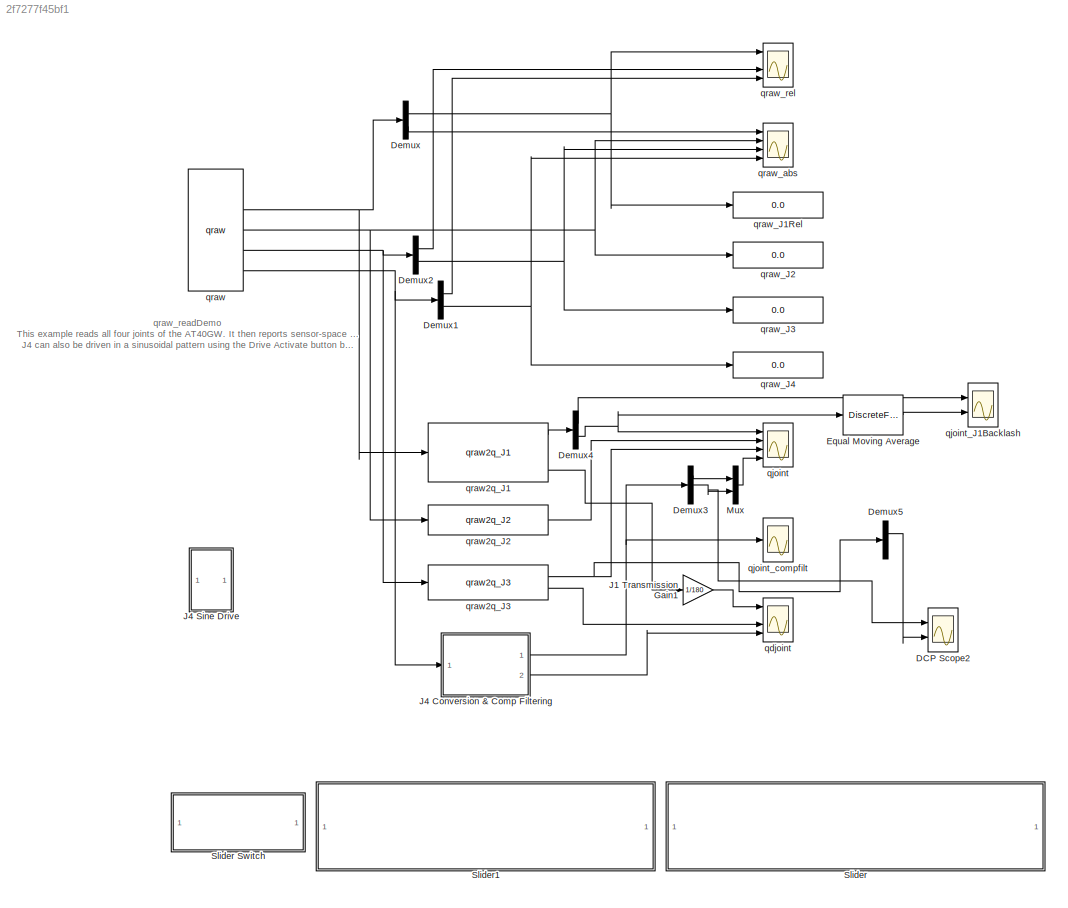
MODEL slx_2f7277f45bf1
KIND model
CONFIG AbsTol = auto
CONFIG EnableMultiTasking = on
CONFIG FixedStep = 0.001
CONFIG MaxStep = auto
CONFIG MinStep = auto
CONFIG RelTol = 1e-3
CONFIG SampleTimeConstraint = Unconstrained
CONFIG Solver = ode5
CONFIG SolverName = ode5
CONFIG StartTime = 0.0
CONFIG StopTime = inf
BLOCK [Scope] DCP Scope2
  NumInputPorts = 2
  Ports = [2]
  ScopeSpecificationString = Simulink.scopes.TimeScopeBlockCfg('CurrentConfiguration', extmgr.ConfigurationSet(extmgr.Configuration('Core','General UI',true,'FigureColor',[1 1 1]),extmgr.Configuration('Core','Source UI',true),extmgr.Configuration('Sources','WiredSimulink',true,'DataLoggingVariableName','ScopeData1'),extmgr.Configuration('Visuals','Time Domain',true,'SerializedDisplays',{struct('MinYLimReal','3276.9084','MaxYL...<+2415ch>
BLOCK [Demux] Demux
  DisplayOption = bar
  Outputs = 2
  Ports = [1, 2]
BLOCK [Demux] Demux1
  DisplayOption = bar
  Outputs = 2
  Ports = [1, 2]
BLOCK [Demux] Demux2
  DisplayOption = bar
  Outputs = 2
  Ports = [1, 2]
BLOCK [Demux] Demux3
  DisplayOption = bar
  Outputs = 3
  Ports = [1, 3]
BLOCK [Demux] Demux4
  DisplayOption = bar
  Outputs = 2
  Ports = [1, 2]
BLOCK [Demux] Demux5
  DisplayOption = bar
  Outputs = 2
  Ports = [1, 2]
BLOCK [DiscreteFir] Equal Moving Average
  Coefficients = repmat([1/20],1,20)
  InputPortMap = u0
  InputProcessing = Columns as channels (frame based)
  OutputPortMap = o0
  Ports = [1, 1]
BLOCK [Gain] J1 Transmission Gain1
  Gain = 1/180
  OutDataTypeStr = Inherit: Inherit via internal rule
  ParamDataTypeStr = Inherit: Inherit via internal rule
  SaturateOnIntegerOverflow = off
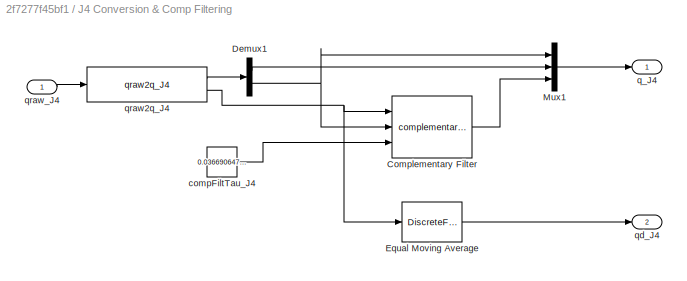
BLOCK [SubSystem] J4 Conversion & Comp Filtering
  Ports = [1, 2]
  RequestExecContextInheritance = off
  Variant = off
BLOCK [Reference] J4 Conversion & Comp Filtering/Complementary Filter  REF=dcpctrl/complementaryFilter
  Ports = [3, 1]
  SourceBlock = dcpctrl/complementaryFilter
  SourceType = SubSystem
BLOCK [Demux] J4 Conversion & Comp Filtering/Demux1
  DisplayOption = bar
  Outputs = 2
  Ports = [1, 2]
BLOCK [DiscreteFir] J4 Conversion & Comp Filtering/Equal Moving Average
  Coefficients = [0.1 0.1 0.1 0.1 0.1 0.1 0.1 0.1 0.1 0.1]
  InputPortMap = u0
  InputProcessing = Columns as channels (frame based)
  OutputPortMap = o0
  Ports = [1, 1]
BLOCK [Mux] J4 Conversion & Comp Filtering/Mux1
  DisplayOption = bar
  Inputs = 3
  Ports = [3, 1]
BLOCK [Constant] J4 Conversion & Comp Filtering/compFiltTau_J4
  Value = 0.036690647482
BLOCK [Outport] J4 Conversion & Comp Filtering/q_J4
  IconDisplay = Port number
BLOCK [Outport] J4 Conversion & Comp Filtering/qd_J4
  IconDisplay = Port number
  Port = 2
BLOCK [Reference] J4 Conversion & Comp Filtering/qraw2q_J4  REF=dcpctrl/qraw2q_J4
  Ports = [1, 2]
  SourceBlock = dcpctrl/qraw2q_J4
  SourceType = SubSystem
BLOCK [Inport] J4 Conversion & Comp Filtering/qraw_J4
  IconDisplay = Port number
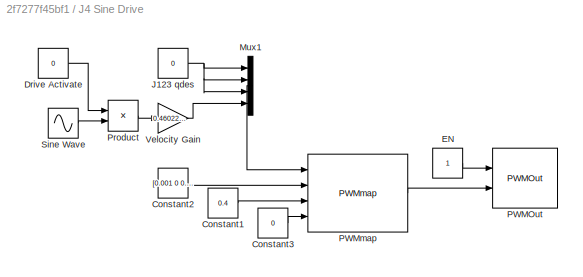
BLOCK [SubSystem] J4 Sine Drive
  Ports = []
  RequestExecContextInheritance = off
  Variant = off
BLOCK [Constant] J4 Sine Drive/Constant1
  Value = 0.4
BLOCK [Constant] J4 Sine Drive/Constant2
  Value = [0.001 0 0.001 0.001]
BLOCK [Constant] J4 Sine Drive/Constant3
  Value = 0
BLOCK [Constant] J4 Sine Drive/Drive Activate
  Value = 0
BLOCK [Constant] J4 Sine Drive/EN
BLOCK [Constant] J4 Sine Drive/J123 qdes
  Value = 0
BLOCK [Mux] J4 Sine Drive/Mux1
  DisplayOption = bar
  Ports = [4, 1]
BLOCK [Reference] J4 Sine Drive/PWMOut  REF=dcpctrl/PWMOut
  Ports = [2]
  SourceBlock = dcpctrl/PWMOut
  SourceType = SubSystem
BLOCK [Reference] J4 Sine Drive/PWMmap  REF=dcpctrl/PWMmap
  Ports = [4, 1]
  SourceBlock = dcpctrl/PWMmap
  SourceType = PWMmap
BLOCK [Product] J4 Sine Drive/Product
  InputSameDT = off
  OutDataTypeStr = Inherit: Inherit via internal rule
  Ports = [2, 1]
  RndMeth = Floor
  SaturateOnIntegerOverflow = off
BLOCK [Sin] J4 Sine Drive/Sine Wave
  Frequency = 0.5
  Ports = [0, 1]
  SampleTime = 0
BLOCK [Gain] J4 Sine Drive/Velocity Gain
  Gain = 0.4602272727273
  OutDataTypeStr = Inherit: Inherit via internal rule
  ParamDataTypeStr = Inherit: Inherit via internal rule
  SaturateOnIntegerOverflow = off
BLOCK [Mux] Mux
  DisplayOption = bar
  Inputs = 2
  Ports = [2, 1]
BLOCK [SubSystem] Slider
  DialogController = hmiCreateDDGDialog
  IsWebBlock = on
  MaskHideContents = on
  Ports = []
  RequestExecContextInheritance = off
  Variant = off
BLOCK [SubSystem] Slider Switch
  DialogController = hmiCreateDDGDialog
  IsWebBlock = on
  MaskHideContents = on
  Ports = []
  RequestExecContextInheritance = off
  Variant = off
BLOCK [SubSystem] Slider1
  DialogController = hmiCreateDDGDialog
  IsWebBlock = on
  MaskHideContents = on
  Ports = []
  RequestExecContextInheritance = off
  Variant = off
BLOCK [Scope] qdjoint
  NumInputPorts = 4
  Ports = [4]
  ScopeSpecificationString = Simulink.scopes.TimeScopeBlockCfg('CurrentConfiguration', extmgr.ConfigurationSet(extmgr.Configuration('Core','General UI',true,'FigureColor',[1 1 1]),extmgr.Configuration('Core','Source UI',true),extmgr.Configuration('Sources','WiredSimulink',true,'DataLoggingVariableName','ScopeData1'),extmgr.Configuration('Visuals','Time Domain',true,'SerializedDisplays',{struct('MinYLimReal','-12.00000','MaxYL...<+3991ch>
BLOCK [Scope] qjoint
  NumInputPorts = 4
  Ports = [4]
  ScopeSpecificationString = Simulink.scopes.TimeScopeBlockCfg('CurrentConfiguration', extmgr.ConfigurationSet(extmgr.Configuration('Core','General UI',true,'FigureColor',[1 1 1]),extmgr.Configuration('Core','Source UI',true),extmgr.Configuration('Sources','WiredSimulink',true,'DataLoggingVariableName','ScopeData2'),extmgr.Configuration('Visuals','Time Domain',true,'SerializedDisplays',{struct('MinYLimReal','-0.81543','MaxYLi...<+3982ch>
BLOCK [Scope] qjoint_J1Backlash
  NumInputPorts = 2
  Ports = [2]
  ScopeSpecificationString = Simulink.scopes.TimeScopeBlockCfg('CurrentConfiguration', extmgr.ConfigurationSet(extmgr.Configuration('Core','General UI',true,'FigureColor',[1 1 1]),extmgr.Configuration('Core','Source UI',true),extmgr.Configuration('Sources','WiredSimulink',true,'DataLoggingVariableName','ScopeData1'),extmgr.Configuration('Visuals','Time Domain',true,'SerializedDisplays',{struct('MinYLimReal','-10','MaxYLimReal...<+1913ch>
BLOCK [Scope] qjoint_compfilt
  NumInputPorts = 1
  Ports = [1]
  ScopeSpecificationString = Simulink.scopes.TimeScopeBlockCfg('CurrentConfiguration', extmgr.ConfigurationSet(extmgr.Configuration('Core','General UI',true),extmgr.Configuration('Core','Source UI',true),extmgr.Configuration('Sources','WiredSimulink',true,'DataLoggingVariableName','ScopeData1'),extmgr.Configuration('Visuals','Time Domain',true,'SerializedDisplays',{struct('MinYLimReal','1940.46255','MaxYLimReal','1990.04599',...<+1545ch>
BLOCK [Reference] qraw  REF=dcpctrl/qraw
  Ports = [0, 5]
  SourceBlock = dcpctrl/qraw
  SourceType = SubSystem
BLOCK [Reference] qraw2q_J1  REF=dcpctrl/qraw2q_J1
  Ports = [1, 4]
  SourceBlock = dcpctrl/qraw2q_J1
  SourceType = SubSystem
BLOCK [Reference] qraw2q_J2  REF=dcpctrl/qraw2q_J2
  Ports = [1, 1]
  SourceBlock = dcpctrl/qraw2q_J2
  SourceType = SubSystem
BLOCK [Reference] qraw2q_J3  REF=dcpctrl/qraw2q_J3
  Ports = [1, 2]
  SourceBlock = dcpctrl/qraw2q_J3
  SourceType = SubSystem
BLOCK [Display] qraw_J1Rel
  Decimation = 1
  Ports = [1]
BLOCK [Display] qraw_J2
  Decimation = 1
  Ports = [1]
BLOCK [Display] qraw_J3
  Decimation = 1
  Ports = [1]
BLOCK [Display] qraw_J4
  Decimation = 1
  Ports = [1]
BLOCK [Scope] qraw_abs
  NumInputPorts = 4
  Ports = [4]
  ScopeSpecificationString = Simulink.scopes.TimeScopeBlockCfg('CurrentConfiguration', extmgr.ConfigurationSet(extmgr.Configuration('Core','General UI',true),extmgr.Configuration('Core','Source UI',true),extmgr.Configuration('Sources','WiredSimulink',true,'DataLoggingVariableName','ScopeData1'),extmgr.Configuration('Visuals','Time Domain',true,'SerializedDisplays',{struct('MinYLimReal','-0.25803','MaxYLimReal','0.13718','YLab...<+1468ch>
BLOCK [Scope] qraw_rel
  NumInputPorts = 4
  Ports = [4]
  ScopeSpecificationString = Simulink.scopes.TimeScopeBlockCfg('CurrentConfiguration', extmgr.ConfigurationSet(extmgr.Configuration('Core','General UI',true),extmgr.Configuration('Core','Source UI',true),extmgr.Configuration('Sources','WiredSimulink',true),extmgr.Configuration('Visuals','Time Domain',true,'SerializedDisplays',{struct('MinYLimReal','-19500.25','MaxYLimReal','43222.25','YLabelReal','','MinYLimMag','   0.00000',...<+1444ch>
ANNOTATION (root): qraw_readDemo This example reads all four joints of the AT40GW. It then reports sensor-space positions of relative and absolute encoders for each joint, as well as joint-space positions and velocities for each joint. J4 can also be driven in a sinusoidal pattern using the Drive Activate button below.
LINE Demux1:1 -> qraw_rel:4
NET Demux1:2 -> qraw_J4:1, qraw_abs:4
LINE Demux2:1 -> qraw_rel:3
NET Demux2:2 -> qraw_J3:1, qraw_abs:3
LINE Demux3:1 -> Mux:1
NET Demux3:2 -> DCP Scope2:1, Mux:2
LINE Demux4:1 -> qjoint_J1Backlash:1
NET Demux4:2 -> Equal Moving Average:1, qjoint:1
LINE Demux5:1 -> DCP Scope2:2
NET Demux:1 -> qraw_J1Rel:1, qraw_rel:1
LINE Demux:2 -> qraw_abs:1
LINE Equal Moving Average:1 -> qjoint_J1Backlash:2
LINE J1 Transmission Gain1:1 -> qdjoint:1
LINE J4 Conversion & Comp Filtering/Complementary Filter:1 -> J4 Conversion & Comp Filtering/Mux1:3
LINE J4 Conversion & Comp Filtering/Demux1:1 -> J4 Conversion & Comp Filtering/Mux1:2
NET J4 Conversion & Comp Filtering/Demux1:2 -> J4 Conversion & Comp Filtering/Complementary Filter:2, J4 Conversion & Comp Filtering/Mux1:1
LINE J4 Conversion & Comp Filtering/Equal Moving Average:1 -> J4 Conversion & Comp Filtering/qd_J4:1
LINE J4 Conversion & Comp Filtering/Mux1:1 -> J4 Conversion & Comp Filtering/q_J4:1
LINE J4 Conversion & Comp Filtering/compFiltTau_J4:1 -> J4 Conversion & Comp Filtering/Complementary Filter:3
LINE J4 Conversion & Comp Filtering/qraw2q_J4:1 -> J4 Conversion & Comp Filtering/Demux1:1
NET J4 Conversion & Comp Filtering/qraw2q_J4:2 -> J4 Conversion & Comp Filtering/Complementary Filter:1, J4 Conversion & Comp Filtering/Equal Moving Average:1
LINE J4 Conversion & Comp Filtering/qraw_J4:1 -> J4 Conversion & Comp Filtering/qraw2q_J4:1
NET J4 Conversion & Comp Filtering:1 -> Demux3:1, qjoint_compfilt:1
LINE J4 Conversion & Comp Filtering:2 -> qdjoint:4
LINE J4 Sine Drive/Constant1:1 -> J4 Sine Drive/PWMmap:3
LINE J4 Sine Drive/Constant2:1 -> J4 Sine Drive/PWMmap:2
LINE J4 Sine Drive/Constant3:1 -> J4 Sine Drive/PWMmap:4
LINE J4 Sine Drive/Drive Activate:1 -> J4 Sine Drive/Product:1
LINE J4 Sine Drive/EN:1 -> J4 Sine Drive/PWMOut:1
NET J4 Sine Drive/J123 qdes:1 -> J4 Sine Drive/Mux1:1, J4 Sine Drive/Mux1:2, J4 Sine Drive/Mux1:3
LINE J4 Sine Drive/Mux1:1 -> J4 Sine Drive/PWMmap:1
LINE J4 Sine Drive/PWMmap:1 -> J4 Sine Drive/PWMOut:2
LINE J4 Sine Drive/Product:1 -> J4 Sine Drive/Velocity Gain:1
LINE J4 Sine Drive/Sine Wave:1 -> J4 Sine Drive/Product:2
LINE J4 Sine Drive/Velocity Gain:1 -> J4 Sine Drive/Mux1:4
LINE Mux:1 -> qjoint:4
LINE qraw2q_J1:1 -> Demux4:1
LINE qraw2q_J1:4 -> J1 Transmission Gain1:1
LINE qraw2q_J2:1 -> qjoint:2
NET qraw2q_J3:1 -> Demux5:1, qjoint:3
LINE qraw2q_J3:2 -> qdjoint:3
NET qraw:2 -> Demux:1, qraw2q_J1:1
NET qraw:3 -> qraw2q_J2:1, qraw_J2:1, qraw_abs:2
NET qraw:4 -> Demux2:1, qraw2q_J3:1
NET qraw:5 -> Demux1:1, J4 Conversion & Comp Filtering:1
note: NET lines group one-source signal fan-out (src -> all destinations, sorted); 1:1 wires keep LINE
